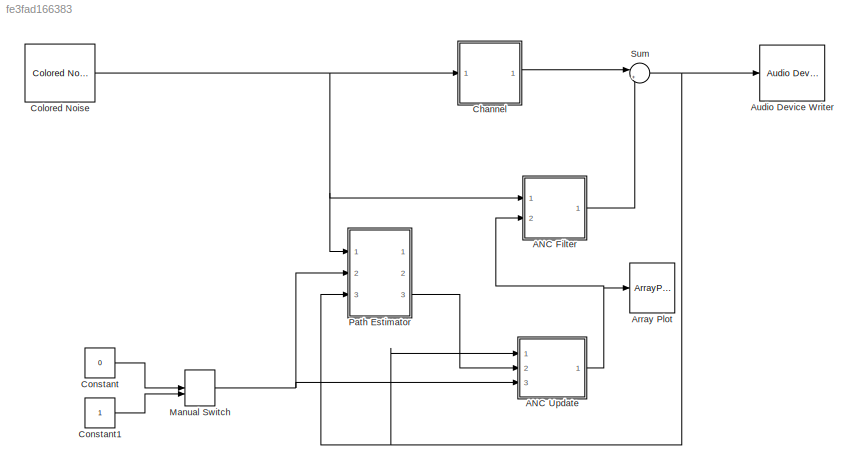
MODEL slx_fe3fad166383
KIND model
CONFIG AbsTol = auto
CONFIG EnableMultiTasking = off
CONFIG FixedStep = auto
CONFIG MaxStep = auto
CONFIG MinStep = auto
CONFIG RelTol = 1e-3
CONFIG SampleTimeConstraint = Unconstrained
CONFIG Solver = VariableStepAuto
CONFIG SolverName = VariableStepAuto
CONFIG StartTime = 0.0
CONFIG StopTime = 10.0
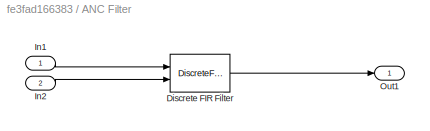
BLOCK [SubSystem] ANC Filter 
  Ports = [2, 1]
  RequestExecContextInheritance = off
BLOCK [DiscreteFir] ANC Filter /Discrete FIR Filter
  CoefSource = Input port
  InputPortMap = u0,u1
  InputProcessing = Columns as channels (frame based)
  OutputPortMap = o0
  Ports = [2, 1]
BLOCK [Inport] ANC Filter /In1
  IconDisplay = Port number
BLOCK [Inport] ANC Filter /In2
  IconDisplay = Port number
  Port = 2
BLOCK [Outport] ANC Filter /Out1
  IconDisplay = Port number
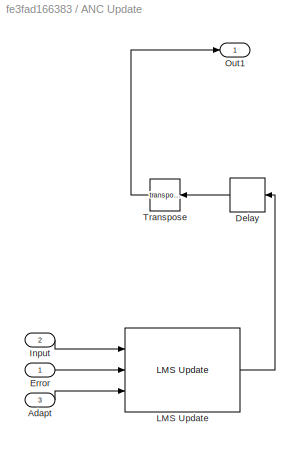
BLOCK [SubSystem] ANC Update
  Ports = [3, 1]
  RequestExecContextInheritance = off
BLOCK [Inport] ANC Update/Adapt 
  IconDisplay = Port number
  Port = 3
BLOCK [Delay] ANC Update/Delay
  DelayLength = 1
  InitialCondition = 0
  InputPortMap = u0
  Ports = [1, 1]
BLOCK [Inport] ANC Update/Error 
  IconDisplay = Port number
BLOCK [Inport] ANC Update/Input 
  IconDisplay = Port number
  Port = 2
BLOCK [Reference] ANC Update/LMS Update  REF=dspadpt3/LMS Update
  Ports = [3, 1]
  SourceBlock = dspadpt3/LMS Update
  SourceProductBaseCode = DS
  SourceProductName = DSP System Toolbox
  SourceType = dsp.private.LMSUpdate
BLOCK [Outport] ANC Update/Out1
  IconDisplay = Port number
BLOCK [Math] ANC Update/Transpose
  Operator = transpose
  Ports = [1, 1]
  SignedPower = off
BLOCK [ArrayPlot] Array Plot
  Ports = [1]
  ScopeSpecificationString = dsp.scopes.ArrayPlotBlockSpecification('CurrentConfiguration', extmgr.ConfigurationSet(extmgr.Configuration('Core','General UI',true),extmgr.Configuration('Core','Source UI',true),extmgr.Configuration('Sources','WiredSimulink',true),extmgr.Configuration('Visuals','Array Plot',true,'DisplayPropertyDefaults',struct('MinYLimReal','-1.25','MaxYLimReal','1.25','YLabelReal','Amplitude','MinYLimMag','0',...<+1390ch>
BLOCK [Reference] Audio Device Writer  REF=dspsnks4/Audio Device
Writer
  Ports = [1]
  SourceBlock = dspsnks4/Audio Device\nWriter
  SourceProductBaseCode = DS
  SourceProductName = DSP System Toolbox
  SourceType = Audio Device Writer
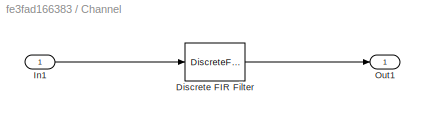
BLOCK [SubSystem] Channel 
  Ports = [1, 1]
  RequestExecContextInheritance = off
BLOCK [DiscreteFir] Channel /Discrete FIR Filter
  Coefficients = [0.5 0.3 1 0.3 -1 0.8 0.5 0.5]
  InputPortMap = u0
  InputProcessing = Columns as channels (frame based)
  OutputPortMap = o0
  Ports = [1, 1]
BLOCK [Inport] Channel /In1
  IconDisplay = Port number
BLOCK [Outport] Channel /Out1
  IconDisplay = Port number
BLOCK [Reference] Colored Noise  REF=dspsrcs4/Colored Noise
  Ports = [0, 1]
  SourceBlock = dspsrcs4/Colored Noise
  SourceProductBaseCode = DS
  SourceProductName = DSP System Toolbox
  SourceType = dsp.simulink.ColoredNoise
BLOCK [Constant] Constant
  Value = 0
BLOCK [Constant] Constant1
BLOCK [ManualSwitch] Manual Switch
  CurrentSetting = 0
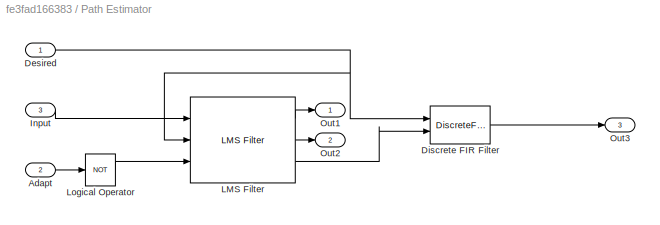
BLOCK [SubSystem] Path Estimator
  Ports = [3, 3]
  RequestExecContextInheritance = off
BLOCK [Inport] Path Estimator/Adapt
  IconDisplay = Port number
  Port = 2
BLOCK [Inport] Path Estimator/Desired
  IconDisplay = Port number
BLOCK [DiscreteFir] Path Estimator/Discrete FIR Filter
  CoefSource = Input port
  InputPortMap = u0,u1
  InputProcessing = Columns as channels (frame based)
  OutputPortMap = o0
  Ports = [2, 1]
BLOCK [Inport] Path Estimator/Input
  IconDisplay = Port number
  Port = 3
BLOCK [Reference] Path Estimator/LMS Filter  REF=dspadpt3/LMS Filter
  Ports = [3, 3]
  SourceBlock = dspadpt3/LMS Filter
  SourceProductBaseCode = DS
  SourceProductName = DSP System Toolbox
  SourceType = LMS Filter
BLOCK [Logic] Path Estimator/Logical Operator
  AllPortsSameDT = off
  Operator = NOT
  OutDataTypeStr = boolean
  Ports = [1, 1]
BLOCK [Outport] Path Estimator/Out1
  IconDisplay = Port number
BLOCK [Outport] Path Estimator/Out2
  IconDisplay = Port number
  Port = 2
BLOCK [Outport] Path Estimator/Out3
  IconDisplay = Port number
  Port = 3
BLOCK [Sum] Sum
  IconShape = round
  InputSameDT = off
  Inputs = |+-
  OutDataTypeStr = Inherit: Inherit via internal rule
  Ports = [2, 1]
  SaturateOnIntegerOverflow = off
LINE ANC Filter /Discrete FIR Filter:1 -> ANC Filter /Out1:1
LINE ANC Filter /In1:1 -> ANC Filter /Discrete FIR Filter:1
LINE ANC Filter /In2:1 -> ANC Filter /Discrete FIR Filter:2
LINE ANC Filter :1 -> Sum:2
LINE ANC Update/Adapt :1 -> ANC Update/LMS Update:3
LINE ANC Update/Delay:1 -> ANC Update/Transpose:1
LINE ANC Update/Error :1 -> ANC Update/LMS Update:2
LINE ANC Update/Input :1 -> ANC Update/LMS Update:1
LINE ANC Update/LMS Update:1 -> ANC Update/Delay:1
LINE ANC Update/Transpose:1 -> ANC Update/Out1:1
NET ANC Update:1 -> ANC Filter :2, Array Plot:1
LINE Channel /Discrete FIR Filter:1 -> Channel /Out1:1
LINE Channel /In1:1 -> Channel /Discrete FIR Filter:1
LINE Channel :1 -> Sum:1
NET Colored Noise:1 -> ANC Filter :1, Channel :1, Path Estimator:1
LINE Constant1:1 -> Manual Switch:2
LINE Constant:1 -> Manual Switch:1
NET Manual Switch:1 -> ANC Update:3, Path Estimator:2
LINE Path Estimator/Adapt:1 -> Path Estimator/Logical Operator:1
NET Path Estimator/Desired:1 -> Path Estimator/Discrete FIR Filter:1, Path Estimator/LMS Filter:2
LINE Path Estimator/Discrete FIR Filter:1 -> Path Estimator/Out3:1
LINE Path Estimator/Input:1 -> Path Estimator/LMS Filter:1
LINE Path Estimator/LMS Filter:1 -> Path Estimator/Out1:1
LINE Path Estimator/LMS Filter:2 -> Path Estimator/Out2:1
LINE Path Estimator/LMS Filter:3 -> Path Estimator/Discrete FIR Filter:2
LINE Path Estimator/Logical Operator:1 -> Path Estimator/LMS Filter:3
LINE Path Estimator:3 -> ANC Update:2
NET Sum:1 -> ANC Update:1, Audio Device Writer:1, Path Estimator:3
note: NET lines group one-source signal fan-out (src -> all destinations, sorted); 1:1 wires keep LINE
